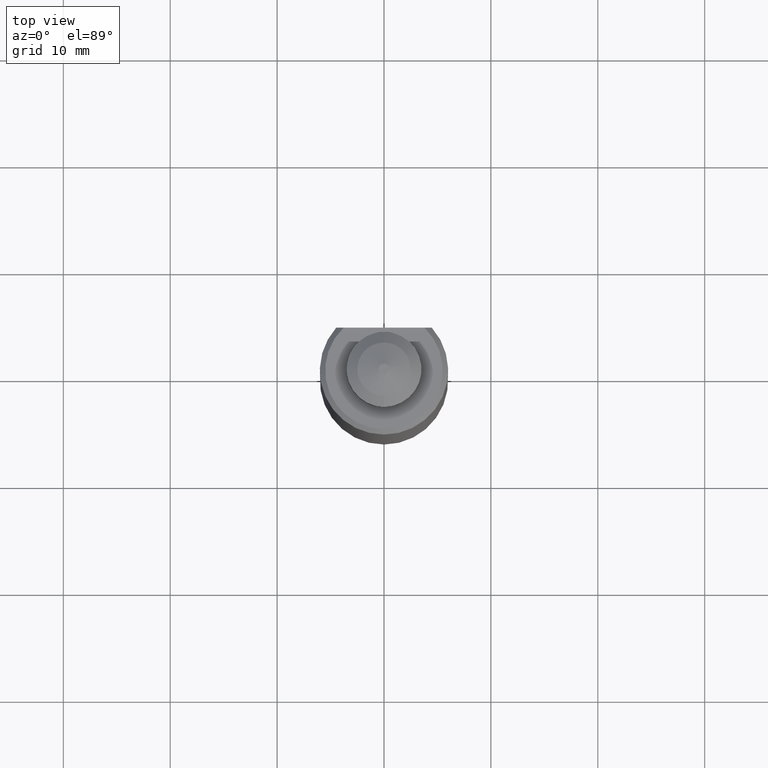
[diagram: clean part render]
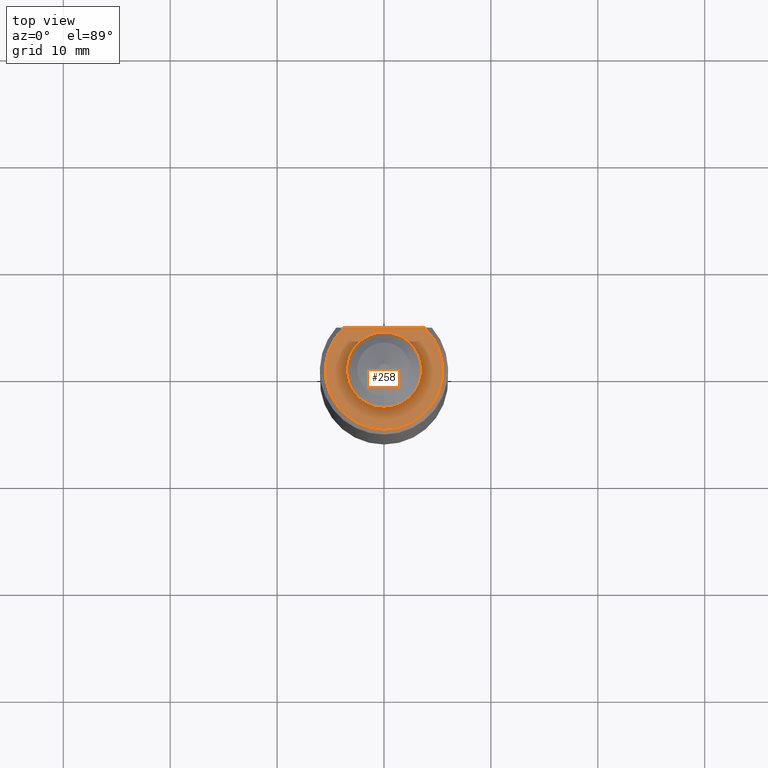
[diagram: same view with one face highlighted and labeled with its STEP entity id]
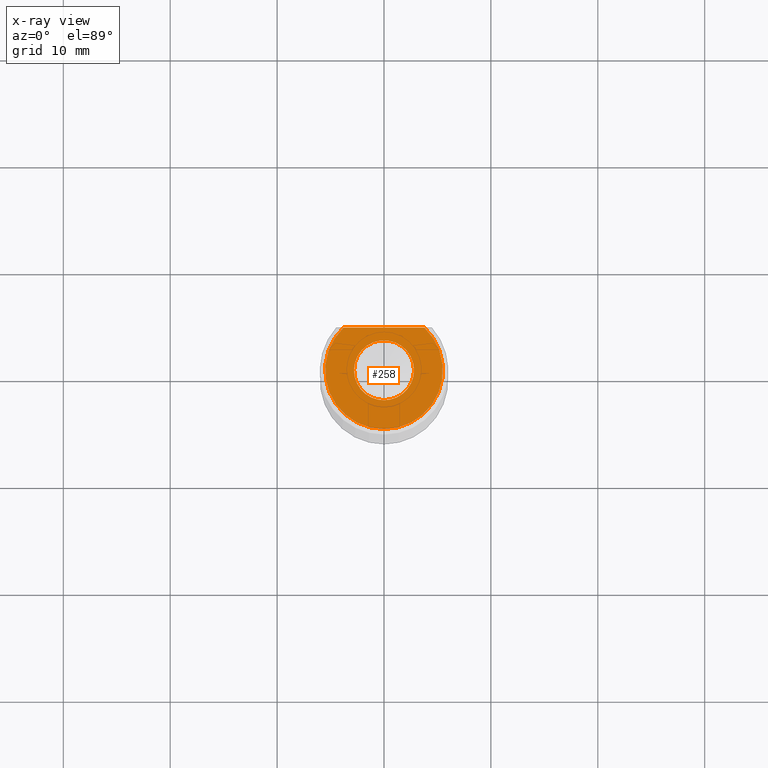
[diagram: x-ray of the same camera — body ghosted, the highlighted face saturated]
A machine part, top view. The second image highlights one B-rep face of the part: STEP entity #258.
The next image is the same camera in x-ray: the body ghosted, the highlighted face saturated — about 0% of this face is hidden behind the body in this view.
In plain terms, the highlighted planar face has unit normal (0, 0, 1).
Its self-contained STEP definition (entity closure, byte-faithful):
#258=ADVANCED_FACE('',(#374,#375),#351,.T.);
#351=PLANE('',#1684);
#374=FACE_BOUND('',#386,.T.);
#375=FACE_BOUND('',#387,.T.);
#386=EDGE_LOOP('',(#677,#678,#679));
#387=EDGE_LOOP('',(#680,#681,#682));
#485=LINE('',#2383,#581);
#581=VECTOR('',#1898,1.);
#677=ORIENTED_EDGE('',*,*,#1287,.F.);
#678=ORIENTED_EDGE('',*,*,#1288,.F.);
#679=ORIENTED_EDGE('',*,*,#1289,.T.);
#680=ORIENTED_EDGE('',*,*,#1290,.F.);
#681=ORIENTED_EDGE('',*,*,#1291,.F.);
#682=ORIENTED_EDGE('',*,*,#1292,.F.);
#1143=VERTEX_POINT('',#2379);
#1144=VERTEX_POINT('',#2380);
#1145=VERTEX_POINT('',#2382);
#1146=VERTEX_POINT('',#2385);
#1147=VERTEX_POINT('',#2386);
#1148=VERTEX_POINT('',#2388);
#1287=EDGE_CURVE('',#1143,#1144,#1520,.T.);
#1288=EDGE_CURVE('',#1145,#1143,#1521,.T.);
#1289=EDGE_CURVE('',#1145,#1144,#485,.T.);
#1290=EDGE_CURVE('',#1146,#1147,#1522,.T.);
#1291=EDGE_CURVE('',#1148,#1146,#1523,.T.);
#1292=EDGE_CURVE('',#1147,#1148,#1524,.T.);
#1520=CIRCLE('',#1679,5.5);
#1521=CIRCLE('',#1680,5.5);
#1522=CIRCLE('',#1681,2.804700538379);
#1523=CIRCLE('',#1682,2.804700538379);
#1524=CIRCLE('',#1683,2.804700538379);
#1679=AXIS2_PLACEMENT_3D('',#2378,#1894,#1895);
#1680=AXIS2_PLACEMENT_3D('',#2381,#1896,#1897);
#1681=AXIS2_PLACEMENT_3D('',#2384,#1899,#1900);
#1682=AXIS2_PLACEMENT_3D('',#2387,#1901,#1902);
#1683=AXIS2_PLACEMENT_3D('',#2389,#1903,#1904);
#1684=AXIS2_PLACEMENT_3D('',#2390,#1905,#1906);
#1894=DIRECTION('',(0.,0.,-1.));
#1895=DIRECTION('',(0.,-1.,0.));
#1896=DIRECTION('',(0.,0.,-1.));
#1897=DIRECTION('',(0.68634858502457,0.727272727272768,0.));
#1898=DIRECTION('',(-1.,0.,0.));
#1899=DIRECTION('',(0.,0.,1.));
#1900=DIRECTION('',(1.,0.,0.));
#1901=DIRECTION('',(0.,0.,1.));
#1902=DIRECTION('',(0.,-1.,0.));
#1903=DIRECTION('',(0.,0.,1.));
#1904=DIRECTION('',(-1.,0.,0.));
#1905=DIRECTION('',(0.,0.,1.));
#1906=DIRECTION('',(0.,1.,0.));
#2378=CARTESIAN_POINT('',(0.,0.,2.75335310107E-14));
#2379=CARTESIAN_POINT('',(0.,-5.5,2.75335310107E-14));
#2380=CARTESIAN_POINT('',(-3.774917217635,4.,4.144832625267E-14));
#2381=CARTESIAN_POINT('',(0.,0.,2.75335310107E-14));
#2382=CARTESIAN_POINT('',(3.774917217635,4.,0.));
#2383=CARTESIAN_POINT('',(3.774917217635,4.,0.));
#2384=CARTESIAN_POINT('',(0.,0.,-1.501021529293E-13));
#2385=CARTESIAN_POINT('',(2.804700538379,0.,-1.474376176702E-13));
#2386=CARTESIAN_POINT('',(-2.804700538379,0.,-1.483257960899E-13));
#2387=CARTESIAN_POINT('',(0.,0.,-1.474376176702E-13));
#2388=CARTESIAN_POINT('',(0.,-2.804700538379,-1.483257960899E-13));
#2389=CARTESIAN_POINT('',(0.,0.,-1.483257960899E-13));
#2390=CARTESIAN_POINT('',(-3.354157263047E-6,-0.75,0.));